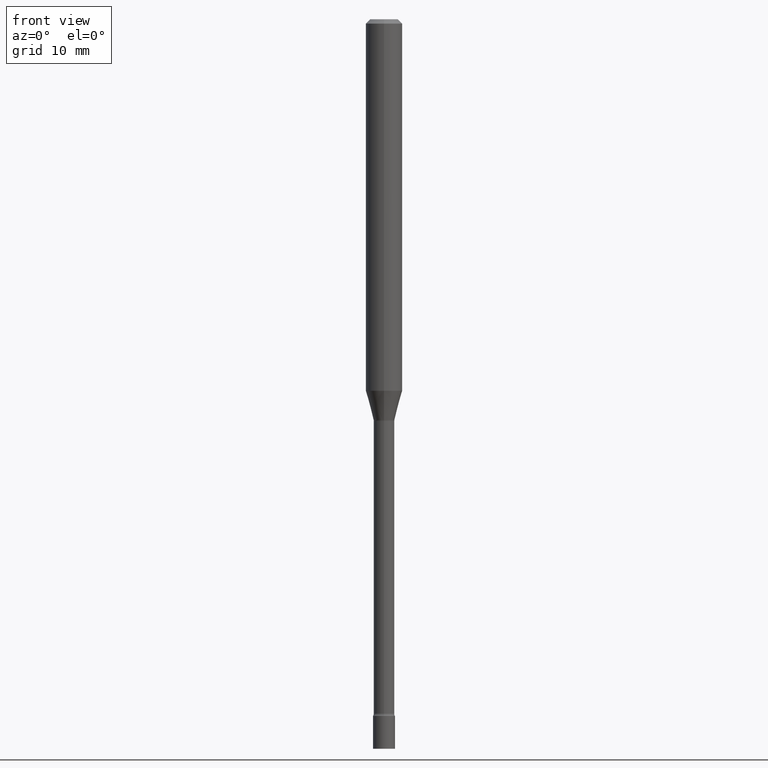
[diagram: clean part render]
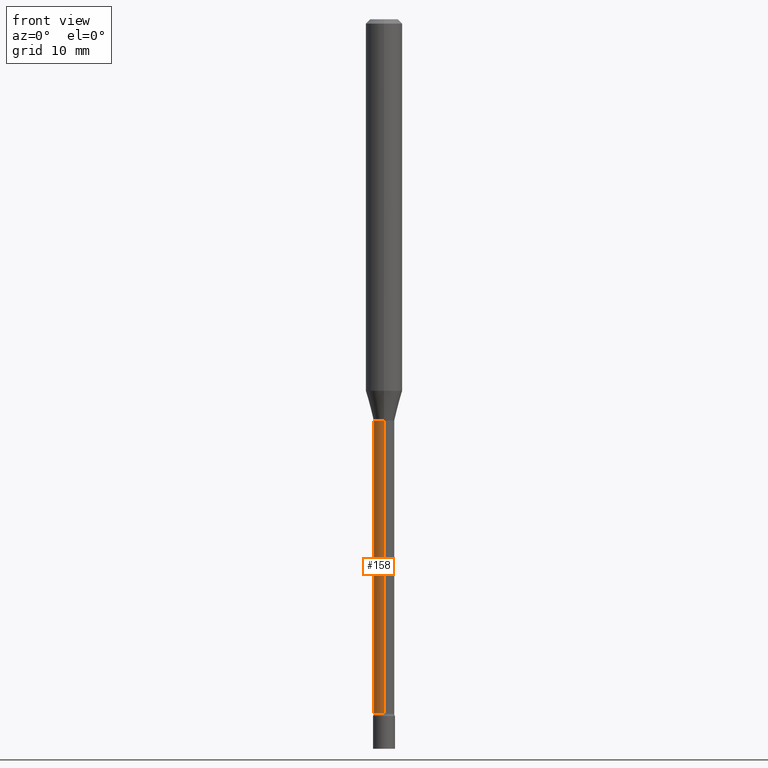
[diagram: same view with one face highlighted and labeled with its STEP entity id]
A machine part, front view. The second image highlights one B-rep face of the part: STEP entity #158.
In plain terms, the highlighted cylindrical surface (edge-blend (fillet) strip) has radius 0.8954 mm, axis along (-0, 0, 1).
Its self-contained STEP definition (entity closure, byte-faithful):
#10 = DIRECTION ( 'NONE',  ( -2.445422782025586364E-29, 3.491547248059153888E-15, 1.000000000000000000 ) ) ;
#37 = DIRECTION ( 'NONE',  ( -2.445422782025586364E-29, 3.491547248059153888E-15, 1.000000000000000000 ) ) ;
#68 = VERTEX_POINT ( 'NONE', #233 ) ;
#70 = VECTOR ( 'NONE', #37, 39.37007874015748143 ) ;
#71 = CIRCLE ( 'NONE', #195, 0.03525000000000016315 ) ;
#87 = DIRECTION ( 'NONE',  ( -6.982962677686265922E-15, -1.000000000000000000, 3.491547248059153493E-15 ) ) ;
#108 = DIRECTION ( 'NONE',  ( -2.445422782025586364E-29, 3.491547248059153888E-15, 1.000000000000000000 ) ) ;
#116 = ORIENTED_EDGE ( 'NONE', *, *, #119, .F. ) ;
#119 = EDGE_CURVE ( 'NONE', #150, #272, #229, .T. ) ;
#127 = CARTESIAN_POINT ( 'NONE',  ( 2.504663143554939137E-16, 0.03524999999999518796, -1.376974787463810967 ) ) ;
#136 = DIRECTION ( 'NONE',  ( -6.982962677686265922E-15, -1.000000000000000000, 0.000000000000000000 ) ) ;
#150 = VERTEX_POINT ( 'NONE', #127 ) ;
#154 = AXIS2_PLACEMENT_3D ( 'NONE', #490, #450, #87 ) ;
#158 = ADVANCED_FACE ( 'NONE', ( #287 ), #415, .T. ) ;
#179 = CARTESIAN_POINT ( 'NONE',  ( -2.461494343884414202E-16, -0.03525000000000007988, 1.230770404940854370E-16 ) ) ;
#188 = CARTESIAN_POINT ( 'NONE',  ( 5.817901084912006179E-29, -8.306733981466744129E-15, -2.379098259685360706 ) ) ;
#195 = AXIS2_PLACEMENT_3D ( 'NONE', #188, #108, #136 ) ;
#198 = EDGE_LOOP ( 'NONE', ( #322, #308, #403, #116 ) ) ;
#202 = DIRECTION ( 'NONE',  ( -6.982962677686265133E-15, -1.000000000000000000, 0.000000000000000000 ) ) ;
#206 = EDGE_CURVE ( 'NONE', #68, #150, #255, .T. ) ;
#229 = CIRCLE ( 'NONE', #331, 0.03524999999999999661 ) ;
#233 = CARTESIAN_POINT ( 'NONE',  ( 2.584599201327950479E-16, 0.03524999999999185729, -2.379098259685360706 ) ) ;
#239 = VECTOR ( 'NONE', #10, 39.37007874015748143 ) ;
#255 = LINE ( 'NONE', #493, #239 ) ;
#272 = VERTEX_POINT ( 'NONE', #316 ) ;
#273 = CARTESIAN_POINT ( 'NONE',  ( 3.367285515538842797E-29, -4.807772529816107808E-15, -1.376974787463810967 ) ) ;
#277 = LINE ( 'NONE', #179, #70 ) ;
#287 = FACE_OUTER_BOUND ( 'NONE', #198, .T. ) ;
#308 = ORIENTED_EDGE ( 'NONE', *, *, #461, .T. ) ;
#313 = VERTEX_POINT ( 'NONE', #519 ) ;
#316 = CARTESIAN_POINT ( 'NONE',  ( -2.461494343884071541E-16, -0.03525000000000479833, -1.376974787463810967 ) ) ;
#322 = ORIENTED_EDGE ( 'NONE', *, *, #206, .F. ) ;
#323 = EDGE_CURVE ( 'NONE', #313, #272, #277, .T. ) ;
#331 = AXIS2_PLACEMENT_3D ( 'NONE', #273, #435, #202 ) ;
#403 = ORIENTED_EDGE ( 'NONE', *, *, #323, .T. ) ;
#415 = CYLINDRICAL_SURFACE ( 'NONE', #154, 0.03525000000000007988 ) ;
#435 = DIRECTION ( 'NONE',  ( -2.445422782025586364E-29, 3.491547248059153888E-15, 1.000000000000000000 ) ) ;
#450 = DIRECTION ( 'NONE',  ( -2.445422782025586364E-29, 3.491547248059153888E-15, 1.000000000000000000 ) ) ;
#461 = EDGE_CURVE ( 'NONE', #68, #313, #71, .T. ) ;
#490 = CARTESIAN_POINT ( 'NONE',  ( 0.000000000000000000, 0.000000000000000000, 0.000000000000000000 ) ) ;
#493 = CARTESIAN_POINT ( 'NONE',  ( 2.504663143554358338E-16, 0.03525000000000007988, -1.230770404940854370E-16 ) ) ;
#519 = CARTESIAN_POINT ( 'NONE',  ( -2.461494343883838334E-16, -0.03525000000000846900, -2.379098259685360706 ) ) ;